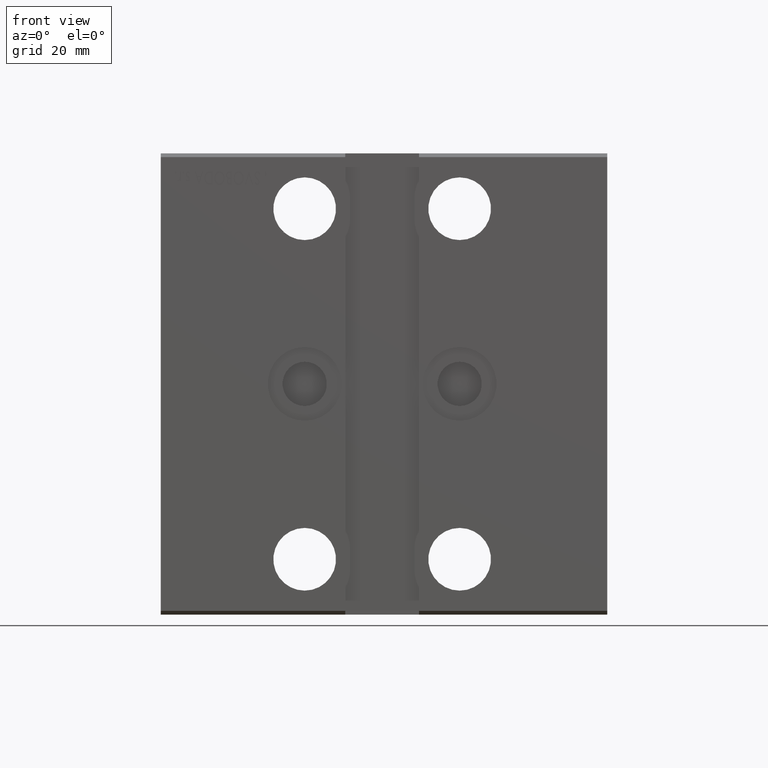
[diagram: clean part render]
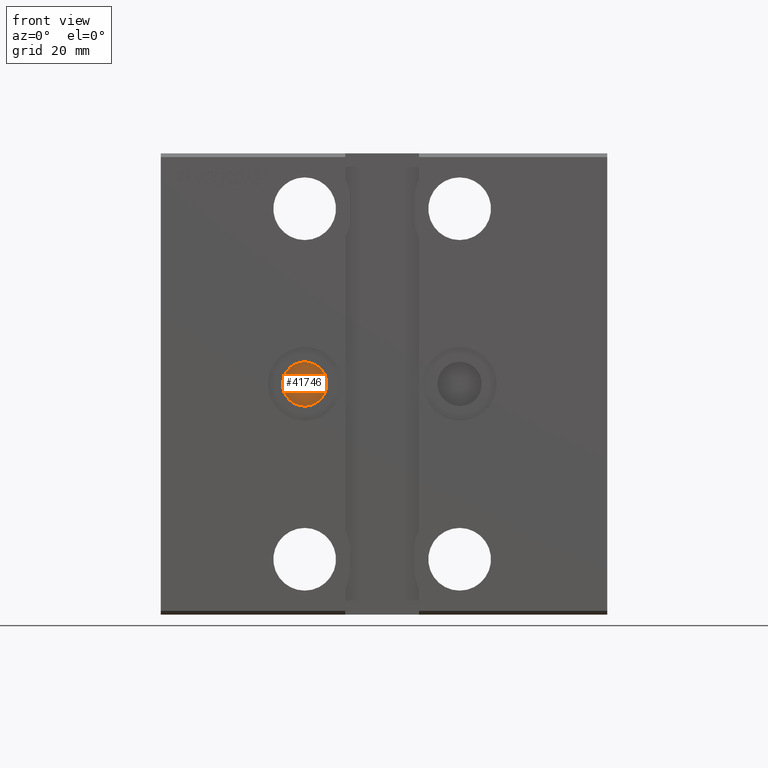
[diagram: same view with one face highlighted and labeled with its STEP entity id]
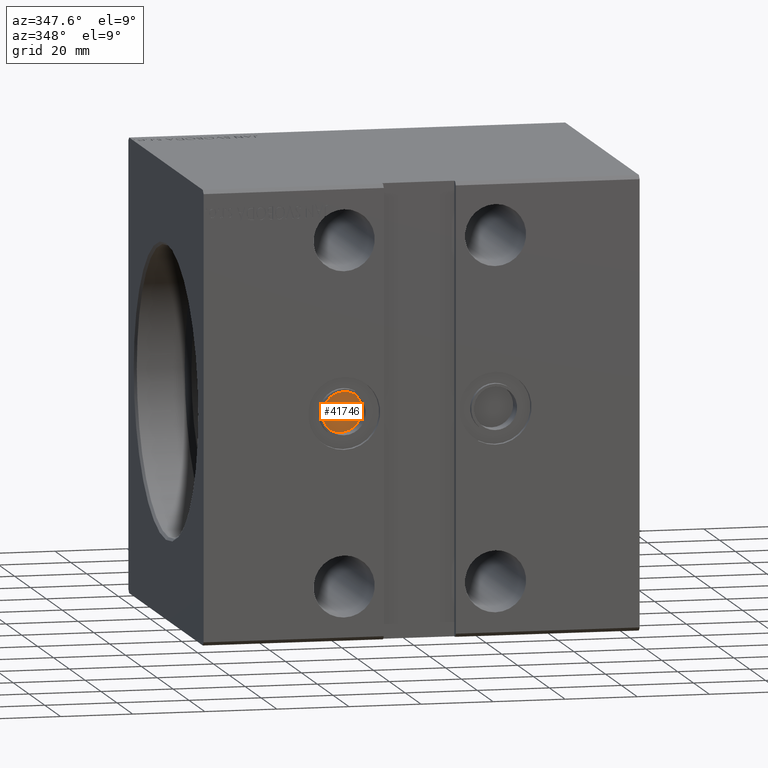
[diagram: same view with one face highlighted and labeled with its STEP entity id]
A machine part, front view. The second image highlights one B-rep face of the part: STEP entity #41746.
A second angle (auxiliary view) of the same face is appended — the face is thin or edge-on in the first view.
In plain terms, the highlighted planar face has unit normal (0, -1, -0).
Its self-contained STEP definition (entity closure, byte-faithful):
#593 = CARTESIAN_POINT ( 'NONE',  ( 39.00000000000000000, -42.50000000000000711, -1.470250342086111776E-14 ) ) ;
#1507 = CARTESIAN_POINT ( 'NONE',  ( 39.00000000000000000, -42.50000000000000711, -1.470250342086111776E-14 ) ) ;
#1716 = DIRECTION ( 'NONE',  ( 0.000000000000000000, 0.000000000000000000, -1.000000000000000000 ) ) ;
#3653 = CARTESIAN_POINT ( 'NONE',  ( 39.00000000000000000, -42.50000000000000711, -1.470250342086111776E-14 ) ) ;
#4436 = FACE_OUTER_BOUND ( 'NONE', #18657, .T. ) ;
#13832 = AXIS2_PLACEMENT_3D ( 'NONE', #3653, #16588, #36124 ) ;
#16588 = DIRECTION ( 'NONE',  ( 0.000000000000000000, -1.000000000000000000, -5.507058653894625853E-17 ) ) ;
#18657 = EDGE_LOOP ( 'NONE', ( #37594, #42023 ) ) ;
#25534 = VERTEX_POINT ( 'NONE', #30889 ) ;
#29689 = PLANE ( 'NONE',  #30470 ) ;
#30328 = DIRECTION ( 'NONE',  ( 0.000000000000000000, -1.000000000000000000, -5.507058653894625853E-17 ) ) ;
#30470 = AXIS2_PLACEMENT_3D ( 'NONE', #593, #30328, #33088 ) ;
#30889 = CARTESIAN_POINT ( 'NONE',  ( 39.00000000000000000, -42.50000000000000711, 5.999999999999980460 ) ) ;
#32879 = CARTESIAN_POINT ( 'NONE',  ( 39.00000000000000000, -42.50000000000000711, -6.000000000000009770 ) ) ;
#32929 = EDGE_CURVE ( 'NONE', #41743, #25534, #35489, .T. ) ;
#33088 = DIRECTION ( 'NONE',  ( 0.000000000000000000, 5.507058653894625853E-17, -1.000000000000000000 ) ) ;
#35489 = CIRCLE ( 'NONE', #13832, 5.999999999999994671 ) ;
#36124 = DIRECTION ( 'NONE',  ( 0.000000000000000000, 0.000000000000000000, -1.000000000000000000 ) ) ;
#36527 = EDGE_CURVE ( 'NONE', #25534, #41743, #41432, .T. ) ;
#36550 = DIRECTION ( 'NONE',  ( 0.000000000000000000, -1.000000000000000000, -5.507058653894625853E-17 ) ) ;
#37594 = ORIENTED_EDGE ( 'NONE', *, *, #32929, .T. ) ;
#38025 = AXIS2_PLACEMENT_3D ( 'NONE', #1507, #36550, #1716 ) ;
#41432 = CIRCLE ( 'NONE', #38025, 5.999999999999994671 ) ;
#41743 = VERTEX_POINT ( 'NONE', #32879 ) ;
#41746 = ADVANCED_FACE ( 'NONE', ( #4436 ), #29689, .T. ) ;
#42023 = ORIENTED_EDGE ( 'NONE', *, *, #36527, .T. ) ;